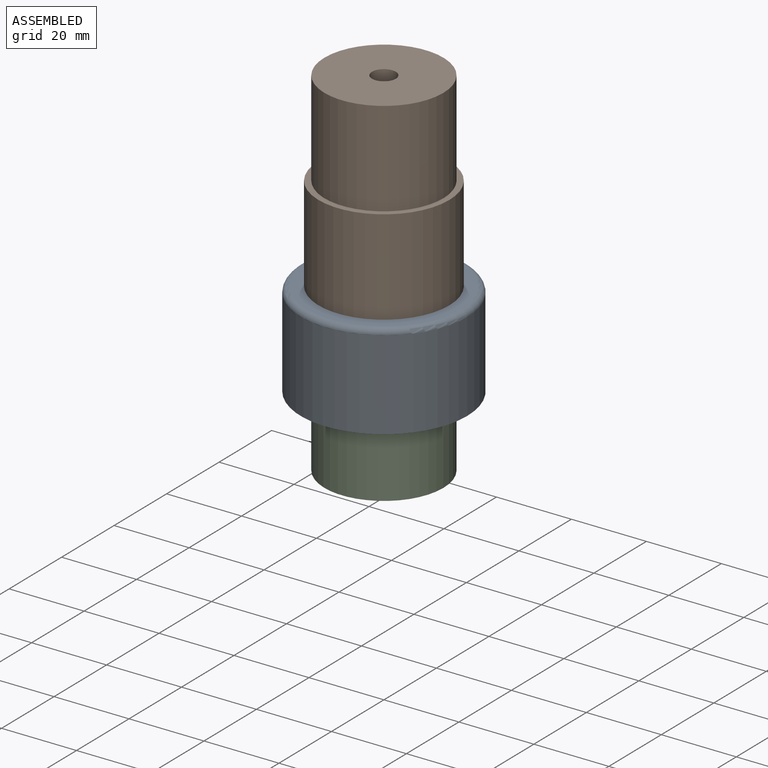
[diagram: assembled view]
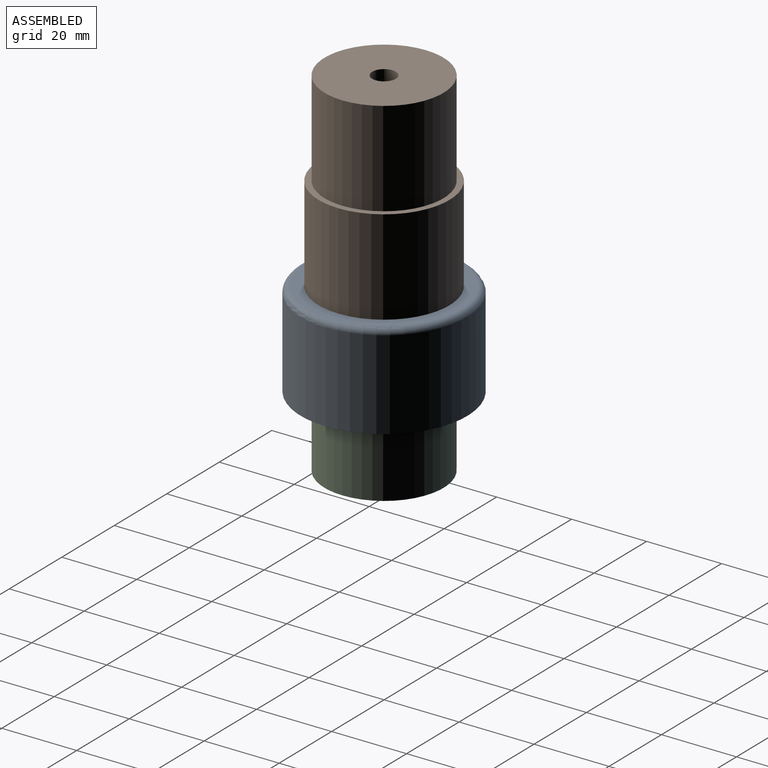
[diagram: assembled view, second angle]
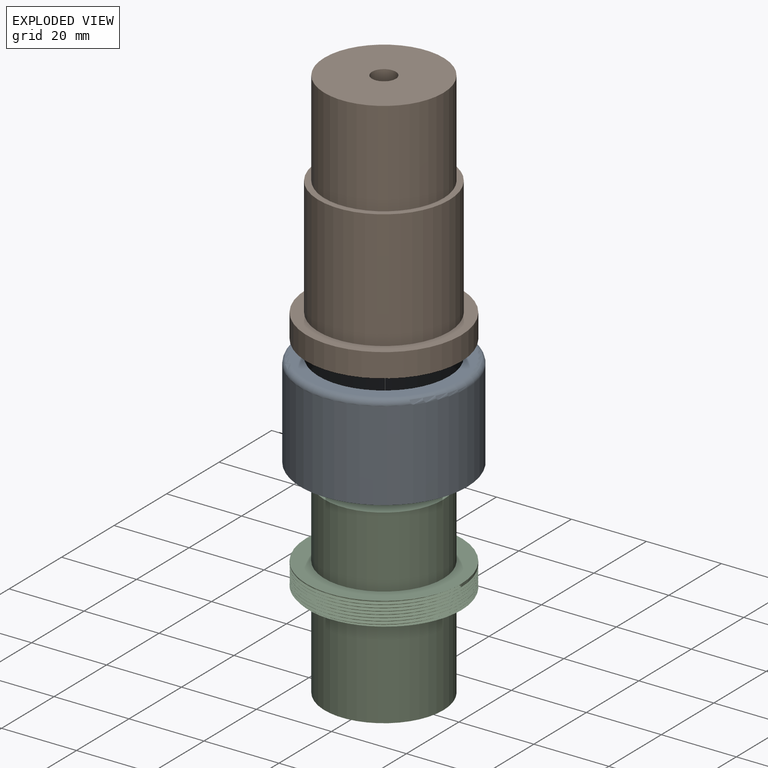
[diagram: exploded view]
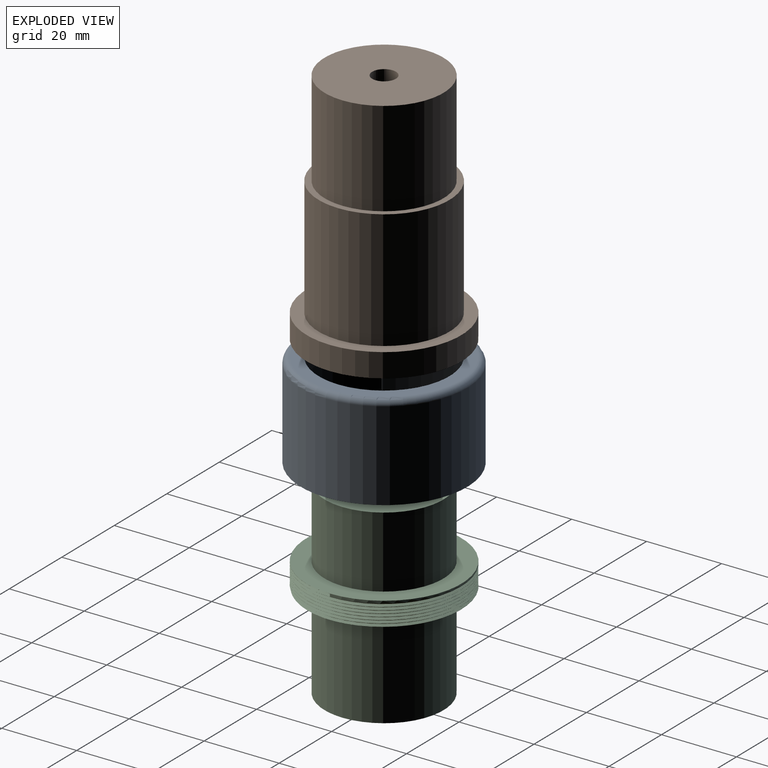
[diagram: exploded view, second angle]
ASSEMBLY  parts=3 mates=2
PART A: 7 faces, bbox 48.1x48.1x25.4 mm
  f0: cylinder r=22.23mm len=44.45mm, axis (0,0,-1), area 3323.5mm2, adj f2,f6
  f1: plane 41.25x41.25mm, normal (0,0,1), area 378.4mm2, adj f5,f6
  f2: plane 44.45x44.45mm, normal (0,0,-1), area 213.8mm2, adj f0,f3
  f3: cylinder r=20.64mm len=41.28mm, axis (0,0,-1), area 2470.2mm2, adj f2,f4
  f4: plane 41.28x41.28mm, normal (0,0,-1), area 380mm2, adj f3,f5
  f5: cylinder r=17.46mm len=34.93mm, axis (0,0,1), area 696.7mm2, adj f1,f4
  f6: torus R=20.62mm, axis (0,0,1), area 341.8mm2, adj f0,f1
PART B: 12 faces, bbox 41.3x41.3x63.5 mm
  f0: plane 31.72x31.72mm, normal (0,0,-1), area 505.4mm2, adj f5,f10
  f1: cylinder r=3.17mm len=6.35mm, axis (0,0,1), area 63.3mm2, adj f2,f11
  f2: plane 31.75x31.75mm, normal (0,0,1), area 760.1mm2, adj f1,f8
  f3: cylinder r=20.64mm len=41.28mm, axis (0,0,-1), area 823.4mm2, adj f4,f7
  f4: plane 41.28x41.28mm, normal (0,0,-1), area 547.6mm2, adj f3,f5
  f5: cylinder r=15.86mm len=31.72mm, axis (0,0,-1), area 2847.9mm2, adj f0,f4
  f6: cylinder r=17.46mm len=34.93mm, axis (0,0,1), area 3483.6mm2, adj f7,f9
  f7: plane 41.28x41.28mm, normal (0,0,1), area 380mm2, adj f3,f6
  f8: cylinder r=15.88mm len=31.75mm, axis (0,0,1), area 2533.5mm2, adj f2,f9
  f9: plane 34.93x34.93mm, normal (0,0,1), area 166.3mm2, adj f6,f8
  f10: cylinder r=9.53mm len=31.75mm, axis (0,0,-1), area 1900.2mm2, adj f0,f11
  f11: plane 19.05x19.05mm, normal (0,0,-1), area 253.4mm2, adj f1,f10
PART C: 21 faces, bbox 41.9x48.3x51.4 mm
  f0: cylinder r=20.64mm len=41.28mm, axis (0,0,-1), area 54.4mm2, adj f1,f17,f19,f20
  f1: cylinder r=20.64mm len=41.28mm, axis (0,0,-1), area 4.1mm2, adj f0,f2,f18,f19
  f2: cylinder r=20.64mm len=41.28mm, axis (0,0,-1), area 4.1mm2, adj f1,f3,f18,f19
  f3: cylinder r=20.64mm len=41.28mm, axis (0,0,-1), area 4.1mm2, adj f2,f4,f18,f19
  f4: cylinder r=20.64mm len=41.28mm, axis (0,0,-1), area 4.1mm2, adj f3,f5,f18,f19
  f5: cylinder r=20.64mm len=41.28mm, axis (0,0,-1), area 4.1mm2, adj f4,f6,f18,f19
  f6: cylinder r=20.64mm len=41.28mm, axis (0,0,-1), area 4.2mm2, adj f5,f7,f18,f19
  f7: cylinder r=20.64mm len=41.28mm, axis (0,0,-1), area 4mm2, adj f6,f8,f11,f18,f19
  f8: cylinder r=20.64mm len=1.6mm, axis (0,0,-1), area 0mm2, adj f7,f11,f18
  f9: plane 31.75x31.75mm, normal (0,0,1), area 615mm2, adj f15,f16
  f10: cylinder r=15.88mm len=31.75mm, axis (0,0,-1), area 2533.5mm2, adj f11,f12
  f11: plane 41.3x41.27mm, normal (0,0,-1), area 505.6mm2, adj f7,f8,f10,f18,f19
  f12: plane 31.75x31.75mm, normal (0,0,-1), area 593.8mm2, adj f10,f13
  f13: cylinder r=7.94mm len=49.21mm, axis (0,0,-1), area 2454.4mm2, adj f12,f14
  f14: plane 15.88x15.88mm, normal (0,0,-1), area 21.2mm2, adj f13,f15
  f15: cylinder r=7.5mm len=15mm, axis (0,0,1), area 74.8mm2, adj f9,f14
  f16: cylinder r=15.88mm len=31.75mm, axis (0,0,1), area 1900.2mm2, adj f9,f17
  f17: plane 41.28x41.28mm, normal (0,0,1), area 546.3mm2, adj f0,f16
  f18: bspline ~47.66x41.28mm, area 708.1mm2, adj f1,f2,f3,f4,f5,f6,f7,f8
  f19: bspline ~47.66x41.28mm, area 751.8mm2, adj f0,f1,f2,f3,f4,f5,f6,f7
  f20: plane 0.76x0.66mm, normal (0,-1,0), area 0.3mm2, adj f0,f18,f19
PLACE A t=(0,0,-6.35)mm
PLACE B t=(0,0,6.35)mm
PLACE C t=(0,0,-25.4)mm
MATE slider B.f1 <-> C.f0  axis (0,0,-1) through (0,0,6.35)mm
MATE slider A.f0 <-> B.f1  axis (0,0,-1) through (0,0,12.7)mm
